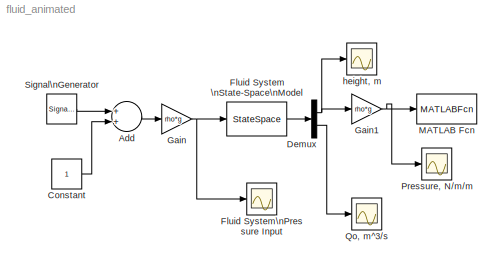
MODEL fluid_animated
KIND model
BLOCK [Sum] Add
  InputSameDT = off
  OutDataTypeMode = Inherit via internal rule
  OutScaling = 2^-10
  Ports = [2, 1]
  SaturateOnIntegerOverflow = off
BLOCK [Constant] Constant
BLOCK [Demux] Demux
  DisplayOption = bar
  Outputs = [3,1]
  Ports = [1, 2]
BLOCK [StateSpace] Fluid System \nState-Space\nModel
  A = A
  B = B
  C = C
  D = D
  X0 = Xo
BLOCK [Scope] Fluid System\nPressure Input
  DataFormat = StructureWithTime
  NumInputPorts = 1
  Ports = [1]
  SaveName = ScopeData2
  TimeRange = 50
  YMax = 20000
  YMin = 0
BLOCK [Gain] Gain
  Gain = rho*g
  OutDataTypeMode = Inherit via internal rule
  ParameterDataTypeMode = Inherit via internal rule
  SaturateOnIntegerOverflow = off
BLOCK [Gain] Gain1
  Gain = rho*g
  OutDataTypeMode = Inherit via internal rule
  ParameterDataTypeMode = Inherit via internal rule
  SaturateOnIntegerOverflow = off
BLOCK [MATLABFcn] MATLAB Fcn
  MATLABFcn = animate_fluid_tank(u)
  SampleTime = 0.01
BLOCK [Scope] Pressure, N//m//m
  DataFormat = StructureWithTime
  LimitDataPoints = off
  NumInputPorts = 1
  Ports = [1]
  TimeRange = 50
  YMax = 14000
  YMin = 0
BLOCK [Scope] Qo, m^3//s
  DataFormat = StructureWithTime
  LimitDataPoints = off
  NumInputPorts = 1
  Ports = [1]
  SaveName = ScopeData3
  TimeRange = 50
  YMax = 0.04
  YMin = 0
  ZoomMode = yonly
BLOCK [SignalGenerator] Signal\nGenerator
  Frequency = omega_0
  Ports = [0, 1]
  Units = rad/sec
BLOCK [Scope] height, m
  DataFormat = StructureWithTime
  LimitDataPoints = off
  NumInputPorts = 1
  Ports = [1]
  SaveName = ScopeData1
  TimeRange = 50
  YMax = 1.5
  YMin = 0
  ZoomMode = yonly
LINE Add:1 -> Gain:1
LINE Constant:1 -> Add:2
NET Demux:1 -> Gain1:1, height, m:1
LINE Demux:2 -> Qo, m^3//s:1
LINE Fluid System \nState-Space\nModel:1 -> Demux:1
NET Gain1:1 -> MATLAB Fcn:1, Pressure, N//m//m:1
NET Gain:1 -> Fluid System \nState-Space\nModel:1, Fluid System\nPressure Input:1
LINE Signal\nGenerator:1 -> Add:1
note: NET lines group one-source signal fan-out (src -> all destinations, sorted); 1:1 wires keep LINE
